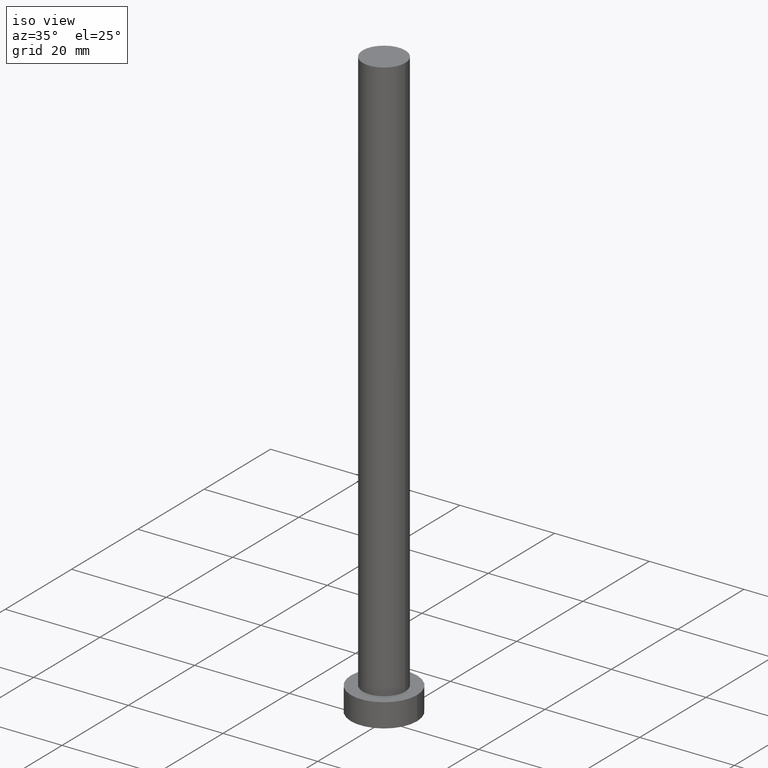
[diagram: clean part render]
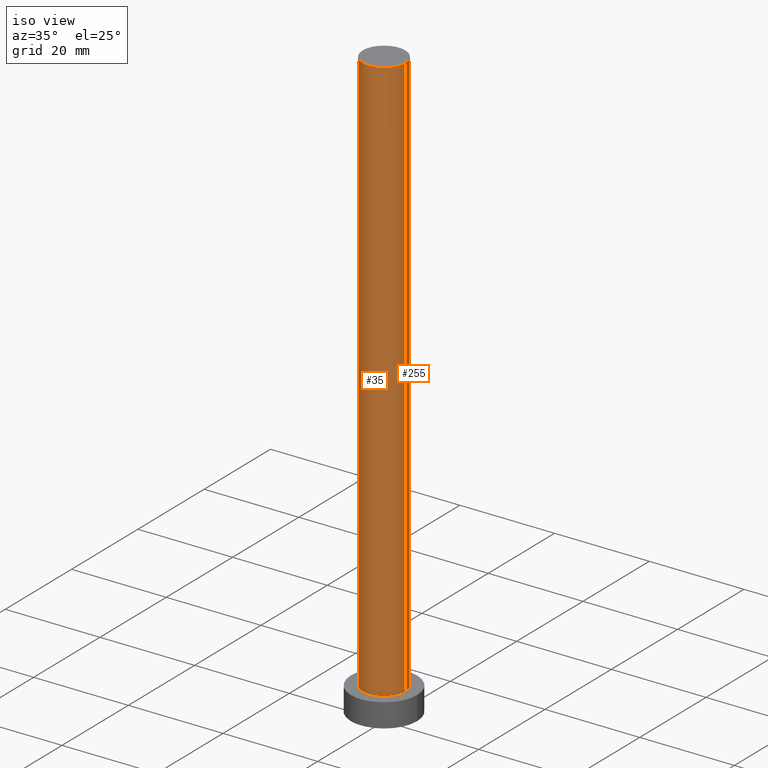
[diagram: same view with one multi-face feature highlighted, each face labeled with its STEP entity id]
A machine part, iso view. The highlighted faces form ONE feature: a constant-radius fillet chain: 2 tangent blend faces with common blend radius 4.5 mm. The faces share edges in the B-rep.
Their STEP definitions:
[1] entity #255 (Cylinder):
#1 = VERTEX_POINT ( 'NONE', #46 ) ;
#11 = EDGE_CURVE ( 'NONE', #104, #241, #99, .T. ) ;
#16 = DIRECTION ( 'NONE',  ( -0.000000000000000000, -0.000000000000000000, -1.000000000000000000 ) ) ;
#22 = CARTESIAN_POINT ( 'NONE',  ( 0.000000000000000000, 0.000000000000000000, 125.0000000000000000 ) ) ;
#24 = ORIENTED_EDGE ( 'NONE', *, *, #140, .T. ) ;
#25 = CARTESIAN_POINT ( 'NONE',  ( -4.500000000000000888, 0.000000000000000000, 125.0000000000000000 ) ) ;
#26 = CARTESIAN_POINT ( 'NONE',  ( 0.000000000000000000, 0.000000000000000000, 5.000000000000000000 ) ) ;
#28 = LINE ( 'NONE', #25, #146 ) ;
#40 = DIRECTION ( 'NONE',  ( 1.000000000000000000, 0.000000000000000000, 0.000000000000000000 ) ) ;
#46 = CARTESIAN_POINT ( 'NONE',  ( -4.500000000000000888, 0.000000000000000000, 5.000000000000000000 ) ) ;
#62 = DIRECTION ( 'NONE',  ( 0.000000000000000000, 0.000000000000000000, 1.000000000000000000 ) ) ;
#66 = CARTESIAN_POINT ( 'NONE',  ( -4.500000000000000888, 0.000000000000000000, 125.0000000000000000 ) ) ;
#72 = DIRECTION ( 'NONE',  ( -0.000000000000000000, -0.000000000000000000, -1.000000000000000000 ) ) ;
#79 = FACE_OUTER_BOUND ( 'NONE', #108, .T. ) ;
#90 = AXIS2_PLACEMENT_3D ( 'NONE', #22, #62, #40 ) ;
#99 = CIRCLE ( 'NONE', #90, 4.500000000000000888 ) ;
#100 = CYLINDRICAL_SURFACE ( 'NONE', #144, 4.500000000000000888 ) ;
#104 = VERTEX_POINT ( 'NONE', #152 ) ;
#107 = ORIENTED_EDGE ( 'NONE', *, *, #11, .F. ) ;
#108 = EDGE_LOOP ( 'NONE', ( #107, #223, #24, #219 ) ) ;
#111 = DIRECTION ( 'NONE',  ( 1.000000000000000000, 0.000000000000000000, 0.000000000000000000 ) ) ;
#113 = CARTESIAN_POINT ( 'NONE',  ( 4.500000000000000888, 5.510910596163089556E-16, 5.000000000000000000 ) ) ;
#118 = EDGE_CURVE ( 'NONE', #241, #1, #28, .T. ) ;
#131 = CARTESIAN_POINT ( 'NONE',  ( 4.500000000000000888, 5.510910596163089556E-16, 125.0000000000000000 ) ) ;
#138 = EDGE_CURVE ( 'NONE', #104, #183, #243, .T. ) ;
#140 = EDGE_CURVE ( 'NONE', #183, #1, #182, .T. ) ;
#144 = AXIS2_PLACEMENT_3D ( 'NONE', #216, #16, #214 ) ;
#146 = VECTOR ( 'NONE', #168, 1000.000000000000000 ) ;
#152 = CARTESIAN_POINT ( 'NONE',  ( 4.500000000000000888, 5.510910596163089556E-16, 125.0000000000000000 ) ) ;
#168 = DIRECTION ( 'NONE',  ( -0.000000000000000000, -0.000000000000000000, -1.000000000000000000 ) ) ;
#171 = DIRECTION ( 'NONE',  ( 0.000000000000000000, 0.000000000000000000, 1.000000000000000000 ) ) ;
#182 = CIRCLE ( 'NONE', #215, 4.500000000000000888 ) ;
#183 = VERTEX_POINT ( 'NONE', #113 ) ;
#214 = DIRECTION ( 'NONE',  ( -1.000000000000000000, 0.000000000000000000, 0.000000000000000000 ) ) ;
#215 = AXIS2_PLACEMENT_3D ( 'NONE', #26, #171, #111 ) ;
#216 = CARTESIAN_POINT ( 'NONE',  ( 0.000000000000000000, 0.000000000000000000, 125.0000000000000000 ) ) ;
#219 = ORIENTED_EDGE ( 'NONE', *, *, #118, .F. ) ;
#223 = ORIENTED_EDGE ( 'NONE', *, *, #138, .T. ) ;
#229 = VECTOR ( 'NONE', #72, 1000.000000000000000 ) ;
#241 = VERTEX_POINT ( 'NONE', #66 ) ;
#243 = LINE ( 'NONE', #131, #229 ) ;
#255 = ADVANCED_FACE ( 'NONE', ( #79 ), #100, .T. ) ;
[2] entity #35 (Cylinder):
#1 = VERTEX_POINT ( 'NONE', #46 ) ;
#5 = ORIENTED_EDGE ( 'NONE', *, *, #114, .F. ) ;
#6 = DIRECTION ( 'NONE',  ( -0.000000000000000000, -0.000000000000000000, -1.000000000000000000 ) ) ;
#25 = CARTESIAN_POINT ( 'NONE',  ( -4.500000000000000888, 0.000000000000000000, 125.0000000000000000 ) ) ;
#28 = LINE ( 'NONE', #25, #146 ) ;
#30 = DIRECTION ( 'NONE',  ( 1.000000000000000000, 0.000000000000000000, 0.000000000000000000 ) ) ;
#35 = ADVANCED_FACE ( 'NONE', ( #208 ), #94, .T. ) ;
#41 = AXIS2_PLACEMENT_3D ( 'NONE', #93, #6, #133 ) ;
#46 = CARTESIAN_POINT ( 'NONE',  ( -4.500000000000000888, 0.000000000000000000, 5.000000000000000000 ) ) ;
#66 = CARTESIAN_POINT ( 'NONE',  ( -4.500000000000000888, 0.000000000000000000, 125.0000000000000000 ) ) ;
#72 = DIRECTION ( 'NONE',  ( -0.000000000000000000, -0.000000000000000000, -1.000000000000000000 ) ) ;
#80 = AXIS2_PLACEMENT_3D ( 'NONE', #128, #207, #30 ) ;
#85 = ORIENTED_EDGE ( 'NONE', *, *, #118, .T. ) ;
#86 = CIRCLE ( 'NONE', #80, 4.500000000000000888 ) ;
#93 = CARTESIAN_POINT ( 'NONE',  ( 0.000000000000000000, 0.000000000000000000, 125.0000000000000000 ) ) ;
#94 = CYLINDRICAL_SURFACE ( 'NONE', #41, 4.500000000000000888 ) ;
#104 = VERTEX_POINT ( 'NONE', #152 ) ;
#105 = EDGE_LOOP ( 'NONE', ( #240, #5, #85, #145 ) ) ;
#110 = CARTESIAN_POINT ( 'NONE',  ( 0.000000000000000000, 0.000000000000000000, 5.000000000000000000 ) ) ;
#113 = CARTESIAN_POINT ( 'NONE',  ( 4.500000000000000888, 5.510910596163089556E-16, 5.000000000000000000 ) ) ;
#114 = EDGE_CURVE ( 'NONE', #241, #104, #86, .T. ) ;
#118 = EDGE_CURVE ( 'NONE', #241, #1, #28, .T. ) ;
#128 = CARTESIAN_POINT ( 'NONE',  ( 0.000000000000000000, 0.000000000000000000, 125.0000000000000000 ) ) ;
#131 = CARTESIAN_POINT ( 'NONE',  ( 4.500000000000000888, 5.510910596163089556E-16, 125.0000000000000000 ) ) ;
#133 = DIRECTION ( 'NONE',  ( -1.000000000000000000, 0.000000000000000000, 0.000000000000000000 ) ) ;
#138 = EDGE_CURVE ( 'NONE', #104, #183, #243, .T. ) ;
#145 = ORIENTED_EDGE ( 'NONE', *, *, #158, .T. ) ;
#146 = VECTOR ( 'NONE', #168, 1000.000000000000000 ) ;
#152 = CARTESIAN_POINT ( 'NONE',  ( 4.500000000000000888, 5.510910596163089556E-16, 125.0000000000000000 ) ) ;
#158 = EDGE_CURVE ( 'NONE', #1, #183, #206, .T. ) ;
#168 = DIRECTION ( 'NONE',  ( -0.000000000000000000, -0.000000000000000000, -1.000000000000000000 ) ) ;
#183 = VERTEX_POINT ( 'NONE', #113 ) ;
#206 = CIRCLE ( 'NONE', #251, 4.500000000000000888 ) ;
#207 = DIRECTION ( 'NONE',  ( 0.000000000000000000, 0.000000000000000000, 1.000000000000000000 ) ) ;
#208 = FACE_OUTER_BOUND ( 'NONE', #105, .T. ) ;
#226 = DIRECTION ( 'NONE',  ( 1.000000000000000000, 0.000000000000000000, 0.000000000000000000 ) ) ;
#227 = DIRECTION ( 'NONE',  ( 0.000000000000000000, 0.000000000000000000, 1.000000000000000000 ) ) ;
#229 = VECTOR ( 'NONE', #72, 1000.000000000000000 ) ;
#240 = ORIENTED_EDGE ( 'NONE', *, *, #138, .F. ) ;
#241 = VERTEX_POINT ( 'NONE', #66 ) ;
#243 = LINE ( 'NONE', #131, #229 ) ;
#251 = AXIS2_PLACEMENT_3D ( 'NONE', #110, #227, #226 ) ;